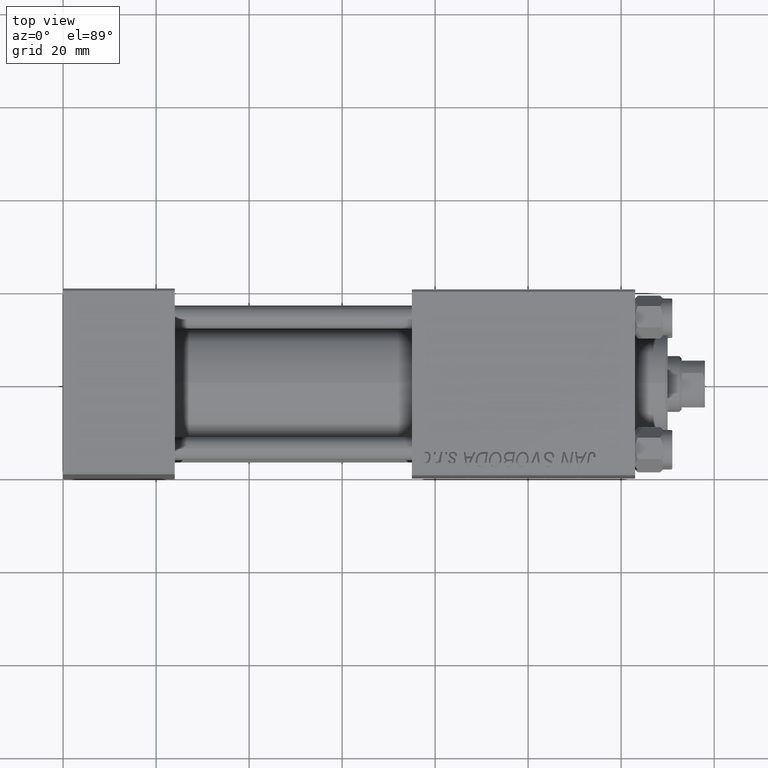
[diagram: clean part render]
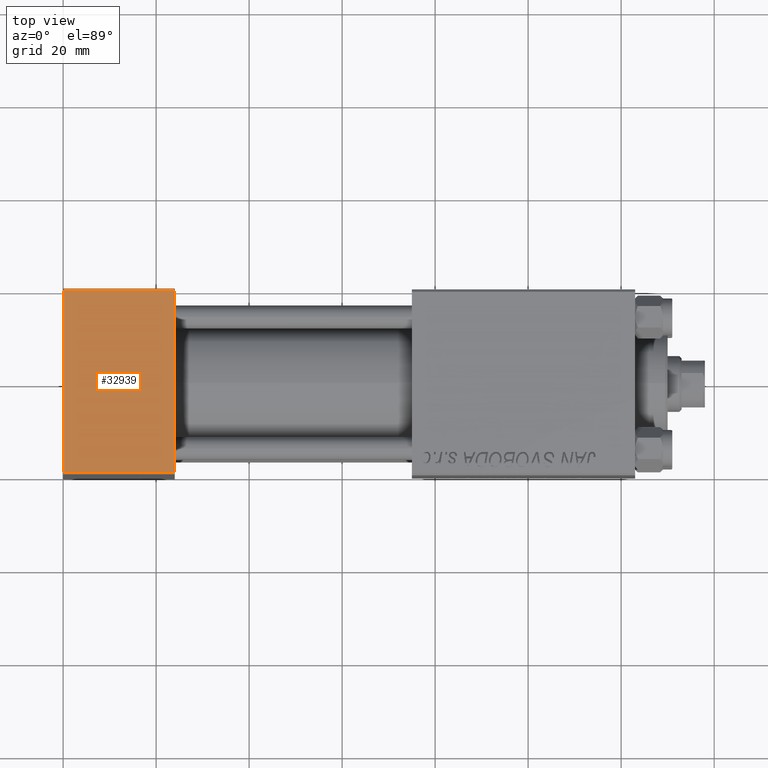
[diagram: same view with one face highlighted and labeled with its STEP entity id]
A machine part, top view. The second image highlights one B-rep face of the part: STEP entity #32939.
In plain terms, the highlighted planar face has unit normal (0, 0, -1).
Its self-contained STEP definition (entity closure, byte-faithful):
#789 = LINE ( 'NONE', #23765, #31549 ) ;
#2818 = VECTOR ( 'NONE', #44791, 1000.000000000000000 ) ;
#3271 = CARTESIAN_POINT ( 'NONE',  ( 0.000000000000000000, -19.50000000000001776, 32.00000000000000000 ) ) ;
#3373 = CARTESIAN_POINT ( 'NONE',  ( 24.00000000000000000, 19.99999999999999645, 32.00000000000000000 ) ) ;
#3653 = CARTESIAN_POINT ( 'NONE',  ( 24.00000000000000000, -19.50000000000001776, 32.00000000000000000 ) ) ;
#5002 = VERTEX_POINT ( 'NONE', #3653 ) ;
#5730 = ORIENTED_EDGE ( 'NONE', *, *, #22448, .T. ) ;
#7411 = DIRECTION ( 'NONE',  ( 0.000000000000000000, 0.000000000000000000, -1.000000000000000000 ) ) ;
#8107 = DIRECTION ( 'NONE',  ( 0.000000000000000000, -1.000000000000000000, 0.000000000000000000 ) ) ;
#11039 = LINE ( 'NONE', #33286, #15640 ) ;
#13785 = EDGE_CURVE ( 'NONE', #44458, #5002, #789, .T. ) ;
#13970 = VERTEX_POINT ( 'NONE', #3271 ) ;
#14001 = CARTESIAN_POINT ( 'NONE',  ( 24.00000000000000000, -19.50000000000001776, 32.00000000000000000 ) ) ;
#15640 = VECTOR ( 'NONE', #33776, 1000.000000000000000 ) ;
#15888 = AXIS2_PLACEMENT_3D ( 'NONE', #3373, #7411, #37463 ) ;
#16518 = EDGE_CURVE ( 'NONE', #13970, #5002, #48566, .T. ) ;
#18225 = CARTESIAN_POINT ( 'NONE',  ( 0.000000000000000000, 19.49999999999999645, 32.00000000000000000 ) ) ;
#22448 = EDGE_CURVE ( 'NONE', #28263, #13970, #11039, .T. ) ;
#23765 = CARTESIAN_POINT ( 'NONE',  ( 24.00000000000000000, 19.99999999999999645, 32.00000000000000000 ) ) ;
#25602 = LINE ( 'NONE', #48334, #2818 ) ;
#26937 = EDGE_CURVE ( 'NONE', #44458, #28263, #25602, .T. ) ;
#28263 = VERTEX_POINT ( 'NONE', #18225 ) ;
#29046 = ORIENTED_EDGE ( 'NONE', *, *, #13785, .F. ) ;
#29646 = PLANE ( 'NONE',  #15888 ) ;
#31549 = VECTOR ( 'NONE', #8107, 1000.000000000000000 ) ;
#32434 = DIRECTION ( 'NONE',  ( 1.000000000000000000, 0.000000000000000000, 0.000000000000000000 ) ) ;
#32939 = ADVANCED_FACE ( 'NONE', ( #49078 ), #29646, .F. ) ;
#33286 = CARTESIAN_POINT ( 'NONE',  ( 0.000000000000000000, 19.99999999999999645, 32.00000000000000000 ) ) ;
#33776 = DIRECTION ( 'NONE',  ( 0.000000000000000000, -1.000000000000000000, 0.000000000000000000 ) ) ;
#37463 = DIRECTION ( 'NONE',  ( -1.000000000000000000, 0.000000000000000000, -0.000000000000000000 ) ) ;
#44458 = VERTEX_POINT ( 'NONE', #44870 ) ;
#44791 = DIRECTION ( 'NONE',  ( -1.000000000000000000, 0.000000000000000000, 0.000000000000000000 ) ) ;
#44870 = CARTESIAN_POINT ( 'NONE',  ( 24.00000000000000000, 19.49999999999999645, 32.00000000000000000 ) ) ;
#46134 = VECTOR ( 'NONE', #32434, 1000.000000000000000 ) ;
#46914 = ORIENTED_EDGE ( 'NONE', *, *, #26937, .T. ) ;
#47572 = EDGE_LOOP ( 'NONE', ( #5730, #49553, #29046, #46914 ) ) ;
#48334 = CARTESIAN_POINT ( 'NONE',  ( 0.000000000000000000, 19.49999999999999645, 32.00000000000000000 ) ) ;
#48566 = LINE ( 'NONE', #14001, #46134 ) ;
#49078 = FACE_OUTER_BOUND ( 'NONE', #47572, .T. ) ;
#49553 = ORIENTED_EDGE ( 'NONE', *, *, #16518, .T. ) ;